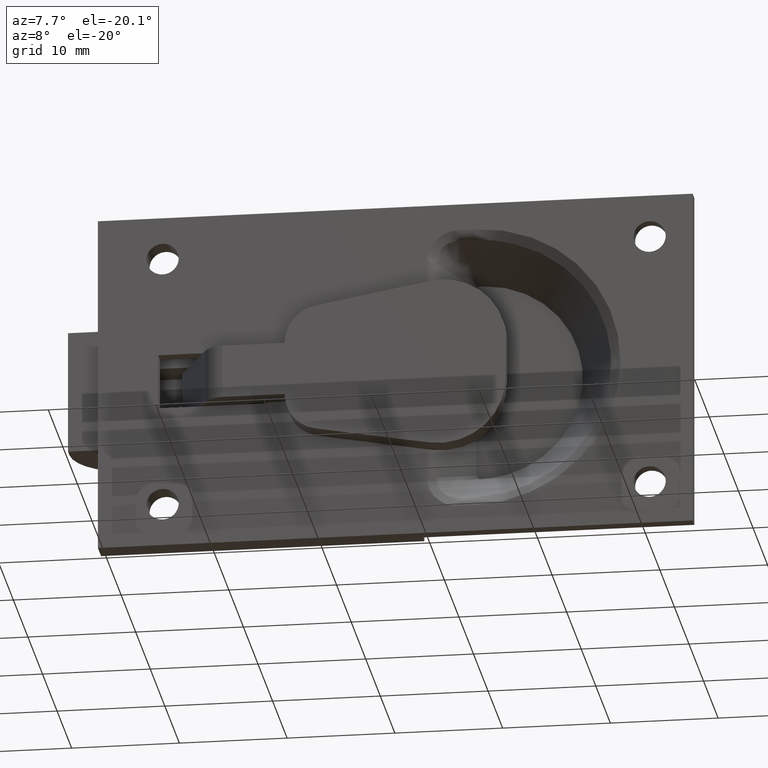
[diagram: clean part render]
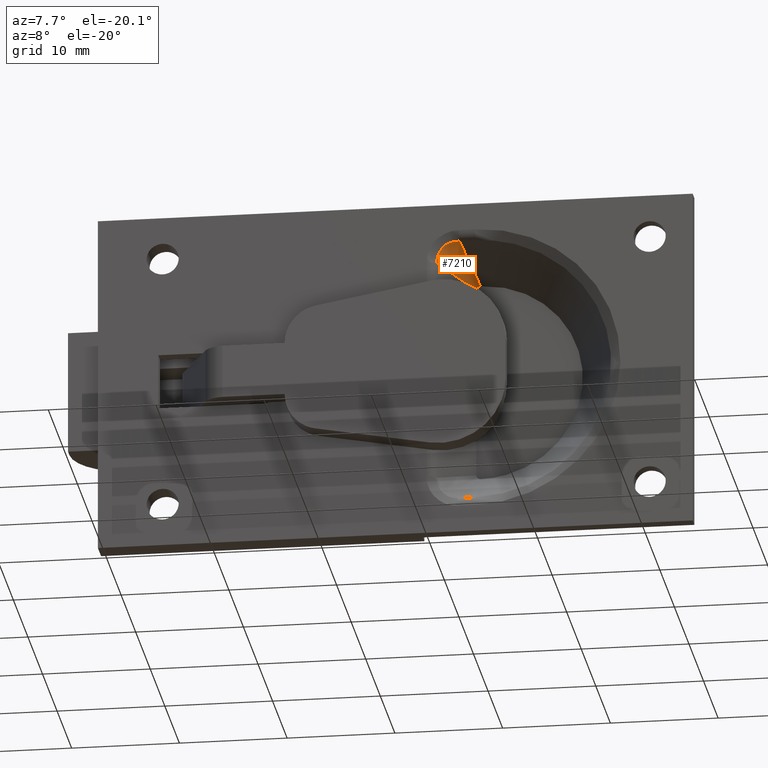
[diagram: same view with one face highlighted and labeled with its STEP entity id]
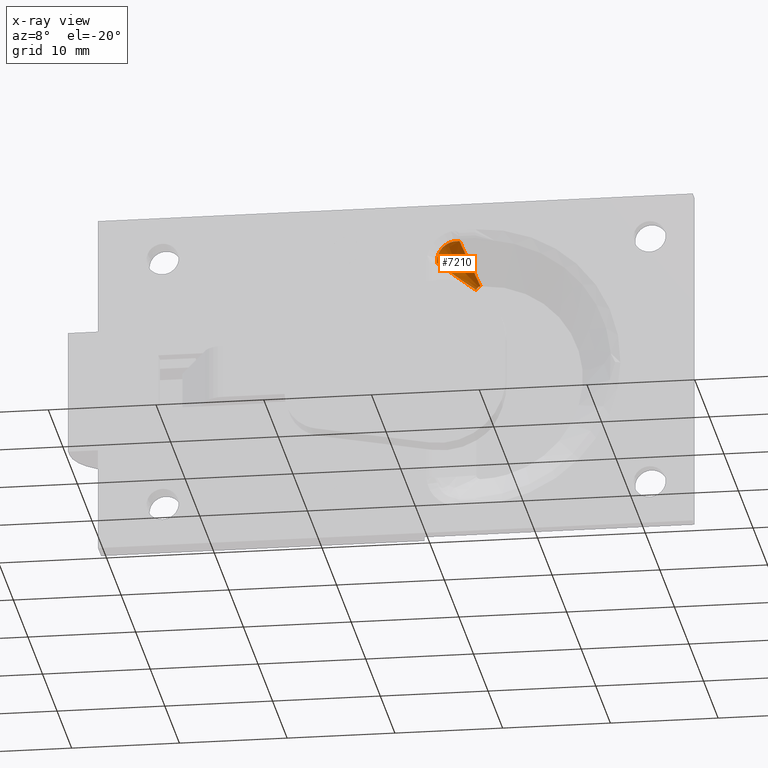
[diagram: x-ray of the same camera — body ghosted, the highlighted face saturated]
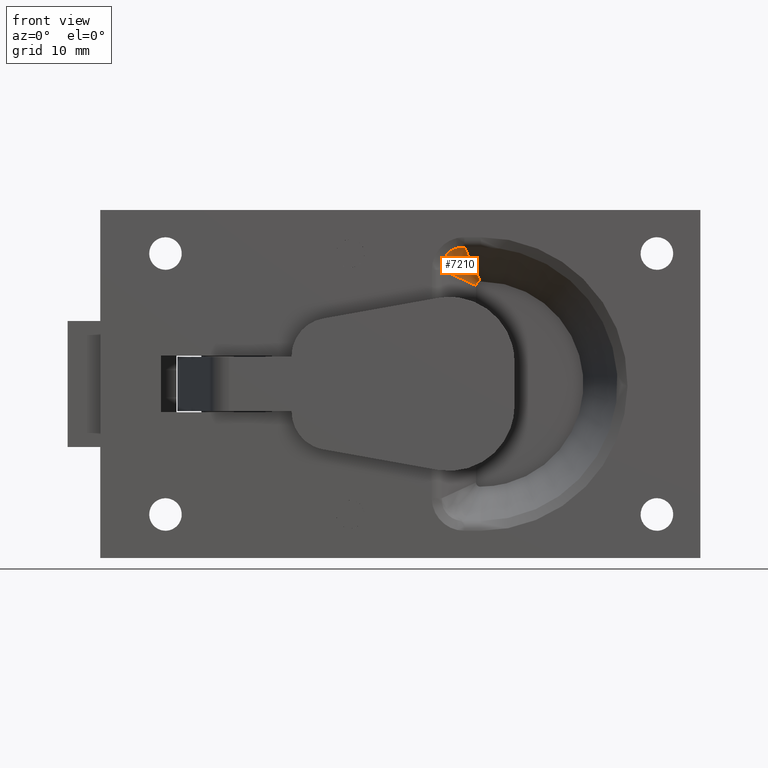
[diagram: same view with one face highlighted and labeled with its STEP entity id]
A machine part, auxiliary view. The second image highlights one B-rep face of the part: STEP entity #7210.
The next image is the same camera in x-ray: the body ghosted, the highlighted face saturated — about 0% of this face is hidden behind the body in this view.
A second angle (front view) of the same face is appended — the face is thin or edge-on in the first view.
In plain terms, the highlighted face is a freeform B-spline surface patch.
Its self-contained STEP definition (entity closure, byte-faithful):
#6860=CARTESIAN_POINT('',(22.696119799894401,0.431707463393276,12.578191349598100));
#6861=VERTEX_POINT('',#6860);
#6903=CARTESIAN_POINT('',(20.621820650401901,0.431707463393278,10.503892200105600));
#6904=VERTEX_POINT('',#6903);
#7076=CARTESIAN_POINT('',(22.696119799894401,0.431707463393278,12.578191349598100));
#7077=CARTESIAN_POINT('',(22.678768831963978,0.430026935321158,12.579592009786101));
#7078=CARTESIAN_POINT('',(22.661176205626401,0.428355198893103,12.580781368980491));
#7079=CARTESIAN_POINT('',(22.626250780370441,0.425099972791833,12.582678495449329));
#7080=CARTESIAN_POINT('',(22.573881298802181,0.420313148827806,12.584831920767099));
#7081=CARTESIAN_POINT('',(22.521568342793870,0.415804948588021,12.584914095860061));
#7082=CARTESIAN_POINT('',(22.417019734433271,0.407138659939337,12.582311778740230));
#7083=CARTESIAN_POINT('',(22.347423534101139,0.401826799990419,12.576895679810340));
#7084=CARTESIAN_POINT('',(22.243194542589649,0.394494078213558,12.563097452484440));
#7085=CARTESIAN_POINT('',(22.208410383727099,0.392151977120598,12.557533376766550));
#7086=CARTESIAN_POINT('',(22.139624780513881,0.387717921748152,12.544613368942960));
#7087=CARTESIAN_POINT('',(22.105546959437891,0.385620186987514,12.537251147241371));
#7088=CARTESIAN_POINT('',(22.004244487919259,0.379662391112541,12.512500158509299));
#7089=CARTESIAN_POINT('',(21.871652383726680,0.372610195881857,12.472407836751490));
#7090=CARTESIAN_POINT('',(21.743989296577968,0.367175270921807,12.418231470785940));
#7091=CARTESIAN_POINT('',(21.650142441431409,0.363675240314193,12.372175413587280));
#7092=CARTESIAN_POINT('',(21.619177555022180,0.362604909171966,12.355917544089980));
#7093=CARTESIAN_POINT('',(21.557899906330331,0.360655783808117,12.321541539001229));
#7094=CARTESIAN_POINT('',(21.527630826962881,0.359779081216168,12.303438449520829));
#7095=CARTESIAN_POINT('',(21.380009092087949,0.355921970090466,12.209525703624760));
#7096=CARTESIAN_POINT('',(21.272021413455160,0.354436010071382,12.122727818705901));
#7097=CARTESIAN_POINT('',(21.124875935586420,0.354448211401065,11.975409772999139));
#7098=CARTESIAN_POINT('',(21.078321098619920,0.354831272752489,11.923425982064520));
#7099=CARTESIAN_POINT('',(20.990410789822349,0.356397125933387,11.813458026577260));
#7100=CARTESIAN_POINT('',(20.949799908471370,0.357568916784179,11.756375519264530));
#7101=CARTESIAN_POINT('',(20.838437469633909,0.362217684447821,11.580304855614120));
#7102=CARTESIAN_POINT('',(20.777631895001619,0.366813429643634,11.456032626854030));
#7103=CARTESIAN_POINT('',(20.706639426608330,0.376278861134086,11.259266304112250));
#7104=CARTESIAN_POINT('',(20.686306066898968,0.379895931888340,11.191519133870241));
#7105=CARTESIAN_POINT('',(20.653508321347349,0.387907988272646,11.055861382649800));
#7106=CARTESIAN_POINT('',(20.640896069642771,0.392311967165095,10.987673459838470));
#7107=CARTESIAN_POINT('',(20.622962639007149,0.401977595967729,10.850613079163811));
#7108=CARTESIAN_POINT('',(20.617642491896419,0.407239120898639,10.781740506091380));
#7109=CARTESIAN_POINT('',(20.615098552919608,0.415849445067313,10.677927097700589));
#7110=CARTESIAN_POINT('',(20.615188276296688,0.420334578267567,10.625894021516370));
#7111=CARTESIAN_POINT('',(20.617337911449969,0.425108315063003,10.573670991978551));
#7112=CARTESIAN_POINT('',(20.619232352016809,0.428357368778091,10.538813239107650));
#7113=CARTESIAN_POINT('',(20.620419990214021,0.430026935321296,10.521243168036040));
#7114=CARTESIAN_POINT('',(20.621820650401901,0.431707463393279,10.503892200105600));
#7115=B_SPLINE_CURVE_WITH_KNOTS('',3,(#7076,#7077,#7078,#7079,#7080,#7081,#7082,#7083,#7084,#7085,#7086,#7087,#7088,#7089,#7090,#7091,#7092,#7093,#7094,#7095,#7096,#7097,#7098,#7099,#7100,#7101,#7102,#7103,#7104,#7105,#7106,#7107,#7108,#7109,#7110,#7111,#7112,#7113,#7114),.UNSPECIFIED.,.F.,.U.,(4,2,1,2,2,2,2,1,2,2,2,2,2,2,2,2,2,2,1,2,4),(0.0,0.015625000000000,0.031250000000000,0.062500000000001,0.125000000000004,0.156250000000006,0.187500000000007,0.250000000000010,0.312500000000013,0.343750000000015,0.375000000000017,0.500000000000016,0.562500000000014,0.625000000000012,0.750000000000009,0.812500000000007,0.875000000000005,0.937500000000003,0.968750000000002,0.984375000000001,1.0),.UNSPECIFIED.);
#7116=EDGE_CURVE('',#6861,#6904,#7115,.T.);
#7121=CARTESIAN_POINT('',(22.513869145661261,-0.041759363038139,12.972809056449551));
#7122=CARTESIAN_POINT('',(20.892018957566311,0.755894474718709,12.307993042433692));
#7123=CARTESIAN_POINT('',(20.227202943550459,-0.041759363038139,10.686142854338730));
#7124=CARTESIAN_POINT('',(23.058125738628210,1.372158424641276,11.794359028058020));
#7125=CARTESIAN_POINT('',(21.886086170720162,1.948587657259144,11.313925829279828));
#7126=CARTESIAN_POINT('',(21.405652971941969,1.372158424641276,10.141886261371790));
#7127=CARTESIAN_POINT('',(23.602382331595159,2.786076212320691,10.615908999666500));
#7128=CARTESIAN_POINT('',(22.880153383874031,3.141280839799582,10.319858616125966));
#7129=CARTESIAN_POINT('',(22.584103000333489,2.786076212320691,9.597629668404846));
#7130=CARTESIAN_POINT('',(24.146638924562101,4.199994000000105,9.437458971274991));
#7131=CARTESIAN_POINT('',(23.874220597027886,4.333974022340017,9.325791402972108));
#7132=CARTESIAN_POINT('',(23.762553028725002,4.199994000000105,9.053373075437911));
#7133=CARTESIAN_POINT('',(24.149884987740830,4.208426909270558,9.430430442278622));
#7134=CARTESIAN_POINT('',(23.880149427325030,4.341087500565902,9.319862572674968));
#7135=CARTESIAN_POINT('',(23.769581557721370,4.208426909270558,9.050127012259184));
#7136=CARTESIAN_POINT('',(24.153131050919558,4.216859818541010,9.423401913282252));
#7137=CARTESIAN_POINT('',(23.886078257622170,4.348200978791789,9.313933742377829));
#7138=CARTESIAN_POINT('',(23.776610086717739,4.216859818541010,9.046880949080453));
#7139=CARTESIAN_POINT('',(24.156377114098280,4.225292727811462,9.416373384285881));
#7140=CARTESIAN_POINT('',(23.892007087919300,4.355314457017676,9.308004912080689));
#7141=CARTESIAN_POINT('',(23.783638615714100,4.225292727811462,9.043634885901726));
#7149=(BOUNDED_SURFACE()B_SPLINE_SURFACE(2,3,((#7121,#7124,#7127,#7130,#7133,#7136,#7139),(#7122,#7125,#7128,#7131,#7134,#7137,#7140),(#7123,#7126,#7129,#7132,#7135,#7138,#7141)),.UNSPECIFIED.,.F.,.F.,.U.)B_SPLINE_SURFACE_WITH_KNOTS((3,3),(4,3,4),(0.0,3.515769906333414),(0.0,5.758220989896268,5.792564256237592),.UNSPECIFIED.)GEOMETRIC_REPRESENTATION_ITEM()RATIONAL_B_SPLINE_SURFACE(((1.0,1.0,1.0,1.0,1.0,1.0,1.0),(0.839616608481545,0.839616608481545,0.839616608481545,0.839616608481545,0.839616608481545,0.839616608481545,0.839616608481545),(1.0,1.0,1.0,1.0,1.0,1.0,1.0)))REPRESENTATION_ITEM('')SURFACE());
#7150=CARTESIAN_POINT('',(23.421379362228251,2.315850731696691,11.007825160436530));
#7151=VERTEX_POINT('',#7150);
#7152=CARTESIAN_POINT('',(24.146638924562101,4.199994000000110,9.437458971274991));
#7153=VERTEX_POINT('',#7152);
#7154=CARTESIAN_POINT('',(23.421379362228251,2.315850731696691,11.007825160436530));
#7155=CARTESIAN_POINT('',(23.663132549672870,2.943898487797830,10.484369764049349));
#7156=CARTESIAN_POINT('',(23.904885737117478,3.571946243898967,9.960914367662170));
#7157=CARTESIAN_POINT('',(24.146638924562101,4.199994000000105,9.437458971274991));
#7158=B_SPLINE_CURVE_WITH_KNOTS('',3,(#7154,#7155,#7156,#7157),.UNSPECIFIED.,.F.,.U.,(4,4),(0.831562824880224,0.947368421052632),.UNSPECIFIED.);
#7159=EDGE_CURVE('',#7151,#7153,#7158,.T.);
#7160=ORIENTED_EDGE('',*,*,#7159,.F.);
#7161=CARTESIAN_POINT('',(22.696119799894401,0.431707463393276,12.578191349598081));
#7162=CARTESIAN_POINT('',(22.937872987339009,1.059755219494414,12.054735953210900));
#7163=CARTESIAN_POINT('',(23.179626174783628,1.687802975595553,11.531280556823720));
#7164=CARTESIAN_POINT('',(23.421379362228251,2.315850731696691,11.007825160436530));
#7165=B_SPLINE_CURVE_WITH_KNOTS('',3,(#7161,#7162,#7163,#7164),.UNSPECIFIED.,.F.,.U.,(4,4),(0.715757228707816,0.831562824880224),.UNSPECIFIED.);
#7166=EDGE_CURVE('',#6861,#7151,#7165,.T.);
#7167=ORIENTED_EDGE('',*,*,#7166,.F.);
#7168=ORIENTED_EDGE('',*,*,#7116,.T.);
#7169=CARTESIAN_POINT('',(22.192186839563458,2.315850731696689,9.778632637771752));
#7170=VERTEX_POINT('',#7169);
#7171=CARTESIAN_POINT('',(22.192186839563458,2.315850731696689,9.778632637771754));
#7172=CARTESIAN_POINT('',(21.668731443176281,1.687802975595550,10.020385825216369));
#7173=CARTESIAN_POINT('',(21.145276046789100,1.059755219494410,10.262139012660990));
#7174=CARTESIAN_POINT('',(20.621820650401919,0.431707463393271,10.503892200105611));
#7175=B_SPLINE_CURVE_WITH_KNOTS('',3,(#7171,#7172,#7173,#7174),.UNSPECIFIED.,.F.,.U.,(4,4),(0.831562824880224,0.947368421052632),.UNSPECIFIED.);
#7176=EDGE_CURVE('',#7170,#6904,#7175,.T.);
#7177=ORIENTED_EDGE('',*,*,#7176,.F.);
#7178=CARTESIAN_POINT('',(23.762553028725002,4.199994000000110,9.053373075437911));
#7179=VERTEX_POINT('',#7178);
#7180=CARTESIAN_POINT('',(23.762553028725002,4.199994000000105,9.053373075437911));
#7181=CARTESIAN_POINT('',(23.239097632337820,3.571946243898966,9.295126262882526));
#7182=CARTESIAN_POINT('',(22.715642235950639,2.943898487797828,9.536879450327138));
#7183=CARTESIAN_POINT('',(22.192186839563458,2.315850731696689,9.778632637771754));
#7184=B_SPLINE_CURVE_WITH_KNOTS('',3,(#7180,#7181,#7182,#7183),.UNSPECIFIED.,.F.,.U.,(4,4),(0.715757228707816,0.831562824880224),.UNSPECIFIED.);
#7185=EDGE_CURVE('',#7179,#7170,#7184,.T.);
#7186=ORIENTED_EDGE('',*,*,#7185,.F.);
#7187=CARTESIAN_POINT('',(24.146638924562101,4.199994000000105,9.437458971274991));
#7188=CARTESIAN_POINT('',(24.121280168548871,4.199994000000106,9.437458971274992));
#7189=CARTESIAN_POINT('',(24.096317591181020,4.199994000000112,9.434979925667930));
#7190=CARTESIAN_POINT('',(24.047158390716248,4.199994000000111,9.425228957319122));
#7191=CARTESIAN_POINT('',(24.022717207911530,4.199994000000073,9.417831896758614));
#7192=CARTESIAN_POINT('',(23.976319798532231,4.199994000000074,9.398624969595403));
#7193=CARTESIAN_POINT('',(23.954265722617979,4.199994000000110,9.386855542466982));
#7194=CARTESIAN_POINT('',(23.912454885908289,4.199994000000110,9.358969513903736));
#7195=CARTESIAN_POINT('',(23.892729510701599,4.199994000000109,9.342785538296228));
#7196=CARTESIAN_POINT('',(23.857340421361599,4.199994000000110,9.307412356791323));
#7197=CARTESIAN_POINT('',(23.841426842799041,4.199994000000111,9.288077770110975));
#7198=CARTESIAN_POINT('',(23.813286983340859,4.199994000000112,9.245996599455767));
#7199=CARTESIAN_POINT('',(23.801440816321360,4.199994000000103,9.223785999747015));
#7200=CARTESIAN_POINT('',(23.782288099016011,4.199994000000103,9.177591499294312));
#7201=CARTESIAN_POINT('',(23.774893897117781,4.199994000000108,9.153315818424977));
#7202=CARTESIAN_POINT('',(23.765032280168960,4.199994000000107,9.103791022075576));
#7203=CARTESIAN_POINT('',(23.762553028725009,4.199994000000100,9.078732024001155));
#7204=CARTESIAN_POINT('',(23.762553028725002,4.199994000000100,9.053373075437911));
#7205=B_SPLINE_CURVE_WITH_KNOTS('',3,(#7187,#7188,#7189,#7190,#7191,#7192,#7193,#7194,#7195,#7196,#7197,#7198,#7199,#7200,#7201,#7202,#7203,#7204),.UNSPECIFIED.,.F.,.U.,(4,2,2,2,2,2,2,2,4),(0.0,0.125000000000000,0.250000000000000,0.375000000000000,0.500000000000000,0.625000000000000,0.750000000000000,0.875000000000000,1.0),.UNSPECIFIED.);
#7206=EDGE_CURVE('',#7153,#7179,#7205,.T.);
#7207=ORIENTED_EDGE('',*,*,#7206,.F.);
#7208=EDGE_LOOP('',(#7160,#7167,#7168,#7177,#7186,#7207));
#7209=FACE_OUTER_BOUND('',#7208,.T.);
#7210=ADVANCED_FACE('',(#7209),#7149,.T.);